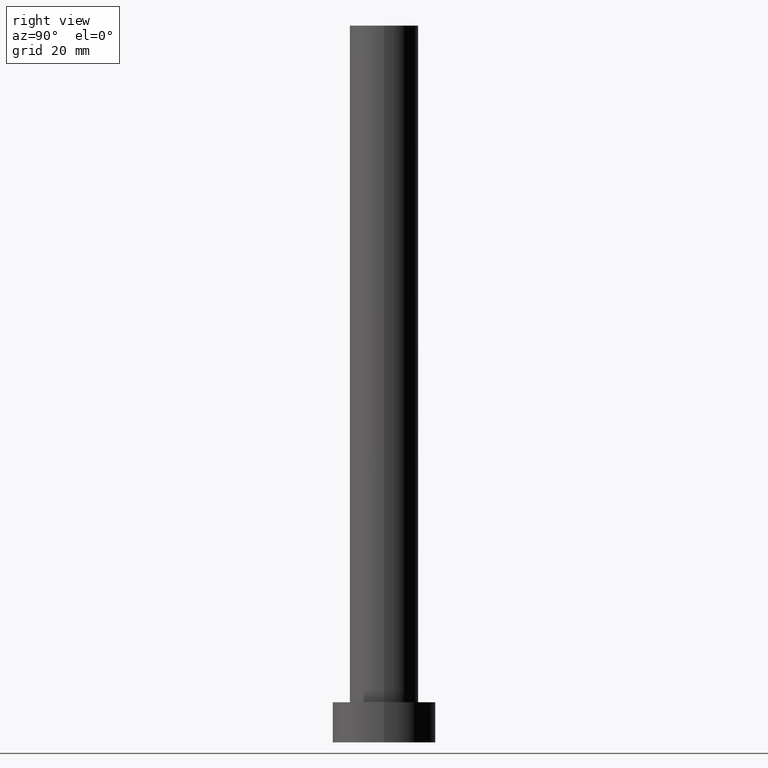
[diagram: clean part render]
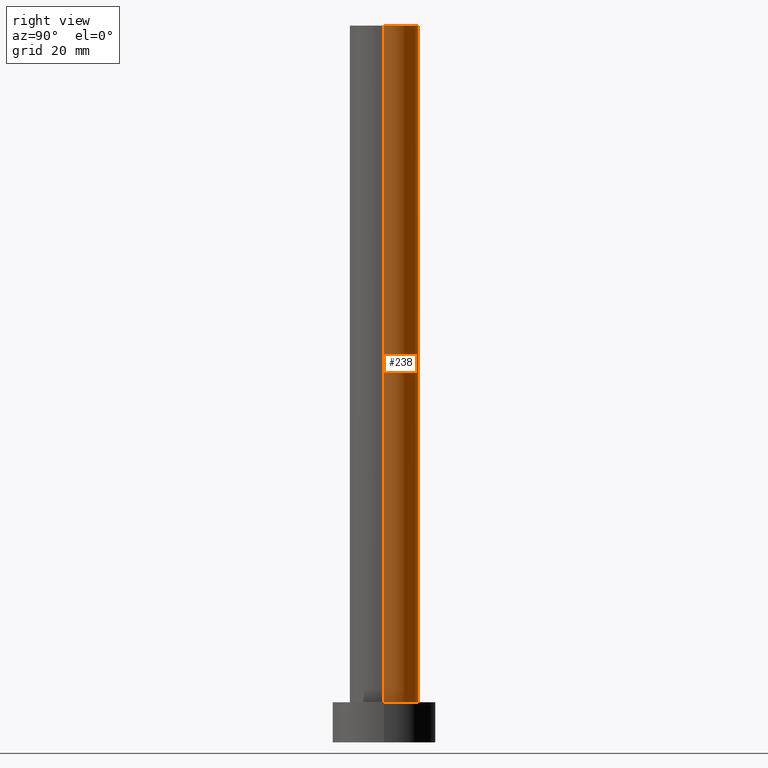
[diagram: same view with one face highlighted and labeled with its STEP entity id]
A machine part, right view. The second image highlights one B-rep face of the part: STEP entity #238.
In plain terms, the highlighted cylindrical surface (edge-blend (fillet) strip) has radius 6 mm, axis along (-0, -0, -1).
Its self-contained STEP definition (entity closure, byte-faithful):
#1 = EDGE_CURVE ( 'NONE', #31, #81, #22, .T. ) ;
#7 = VERTEX_POINT ( 'NONE', #188 ) ;
#13 = LINE ( 'NONE', #229, #47 ) ;
#16 = DIRECTION ( 'NONE',  ( 0.000000000000000000, 0.000000000000000000, 1.000000000000000000 ) ) ;
#22 = LINE ( 'NONE', #241, #146 ) ;
#30 = DIRECTION ( 'NONE',  ( 1.000000000000000000, 0.000000000000000000, 0.000000000000000000 ) ) ;
#31 = VERTEX_POINT ( 'NONE', #120 ) ;
#32 = EDGE_CURVE ( 'NONE', #31, #7, #136, .T. ) ;
#42 = DIRECTION ( 'NONE',  ( -0.000000000000000000, -0.000000000000000000, -1.000000000000000000 ) ) ;
#47 = VECTOR ( 'NONE', #129, 1000.000000000000000 ) ;
#49 = CARTESIAN_POINT ( 'NONE',  ( 0.000000000000000000, 0.000000000000000000, 125.0000000000000000 ) ) ;
#67 = CARTESIAN_POINT ( 'NONE',  ( 0.000000000000000000, 0.000000000000000000, 125.0000000000000000 ) ) ;
#72 = ORIENTED_EDGE ( 'NONE', *, *, #172, .F. ) ;
#75 = CARTESIAN_POINT ( 'NONE',  ( -6.000000000000000888, 0.000000000000000000, 7.000000000000000000 ) ) ;
#81 = VERTEX_POINT ( 'NONE', #210 ) ;
#120 = CARTESIAN_POINT ( 'NONE',  ( 6.000000000000000888, 7.347880794884120722E-16, 125.0000000000000000 ) ) ;
#129 = DIRECTION ( 'NONE',  ( -0.000000000000000000, -0.000000000000000000, -1.000000000000000000 ) ) ;
#130 = EDGE_LOOP ( 'NONE', ( #248, #152, #216, #72 ) ) ;
#136 = CIRCLE ( 'NONE', #141, 6.000000000000000888 ) ;
#141 = AXIS2_PLACEMENT_3D ( 'NONE', #67, #227, #164 ) ;
#142 = EDGE_CURVE ( 'NONE', #81, #153, #157, .T. ) ;
#146 = VECTOR ( 'NONE', #42, 1000.000000000000000 ) ;
#150 = FACE_OUTER_BOUND ( 'NONE', #130, .T. ) ;
#152 = ORIENTED_EDGE ( 'NONE', *, *, #1, .T. ) ;
#153 = VERTEX_POINT ( 'NONE', #75 ) ;
#157 = CIRCLE ( 'NONE', #174, 6.000000000000000888 ) ;
#164 = DIRECTION ( 'NONE',  ( 1.000000000000000000, 0.000000000000000000, 0.000000000000000000 ) ) ;
#172 = EDGE_CURVE ( 'NONE', #7, #153, #13, .T. ) ;
#174 = AXIS2_PLACEMENT_3D ( 'NONE', #214, #16, #30 ) ;
#188 = CARTESIAN_POINT ( 'NONE',  ( -6.000000000000000888, 0.000000000000000000, 125.0000000000000000 ) ) ;
#201 = CYLINDRICAL_SURFACE ( 'NONE', #255, 6.000000000000000888 ) ;
#206 = DIRECTION ( 'NONE',  ( -0.000000000000000000, -0.000000000000000000, -1.000000000000000000 ) ) ;
#210 = CARTESIAN_POINT ( 'NONE',  ( 6.000000000000000888, 7.347880794884120722E-16, 7.000000000000000000 ) ) ;
#214 = CARTESIAN_POINT ( 'NONE',  ( 0.000000000000000000, 0.000000000000000000, 7.000000000000000000 ) ) ;
#216 = ORIENTED_EDGE ( 'NONE', *, *, #142, .T. ) ;
#224 = DIRECTION ( 'NONE',  ( -1.000000000000000000, 0.000000000000000000, 0.000000000000000000 ) ) ;
#227 = DIRECTION ( 'NONE',  ( 0.000000000000000000, 0.000000000000000000, 1.000000000000000000 ) ) ;
#229 = CARTESIAN_POINT ( 'NONE',  ( -6.000000000000000888, 0.000000000000000000, 125.0000000000000000 ) ) ;
#238 = ADVANCED_FACE ( 'NONE', ( #150 ), #201, .T. ) ;
#241 = CARTESIAN_POINT ( 'NONE',  ( 6.000000000000000888, 7.347880794884120722E-16, 125.0000000000000000 ) ) ;
#248 = ORIENTED_EDGE ( 'NONE', *, *, #32, .F. ) ;
#255 = AXIS2_PLACEMENT_3D ( 'NONE', #49, #206, #224 ) ;